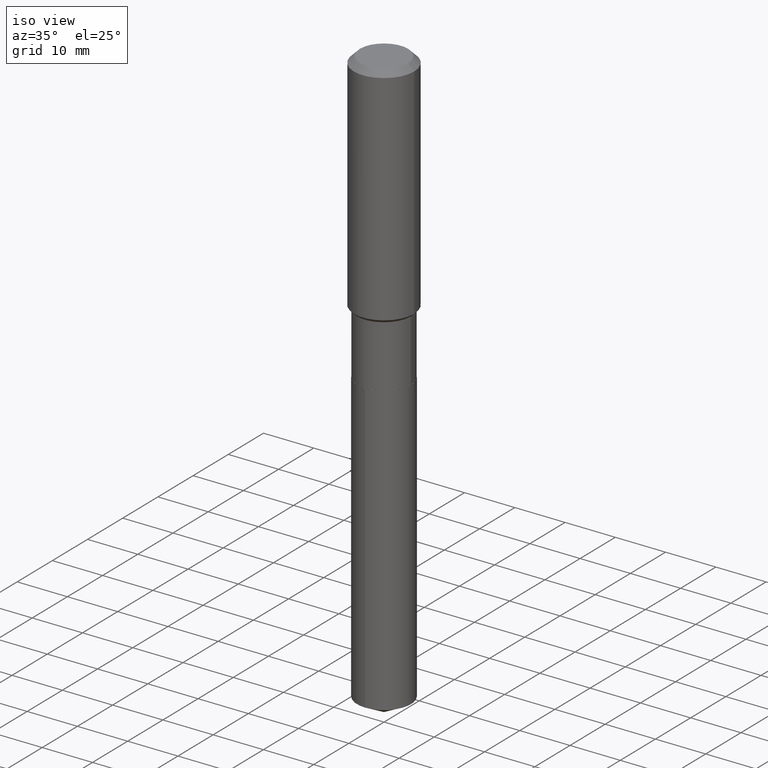
[diagram: clean part render]
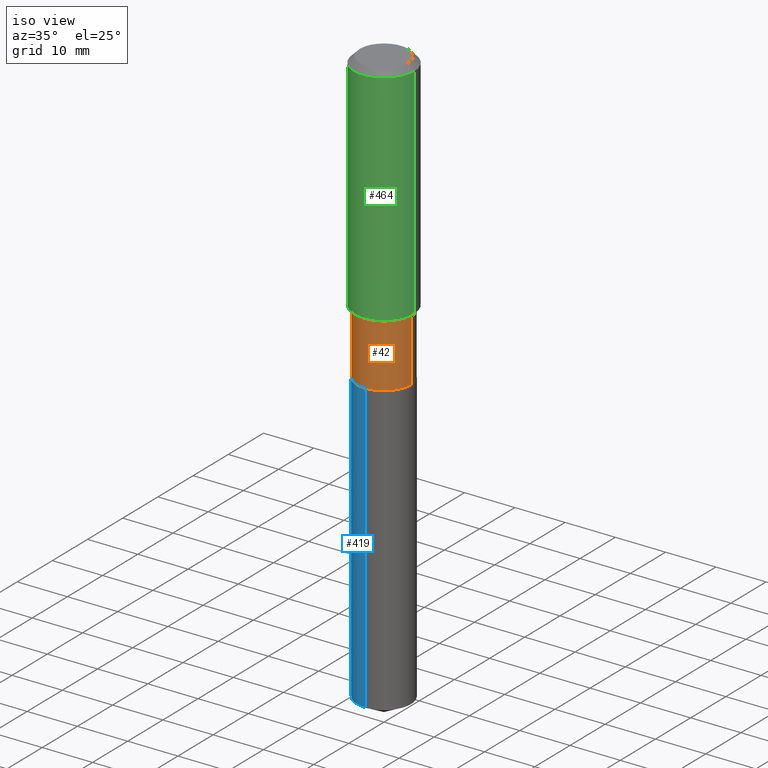
[diagram: same view with three faces highlighted in distinct colors, each labeled with its STEP entity id]
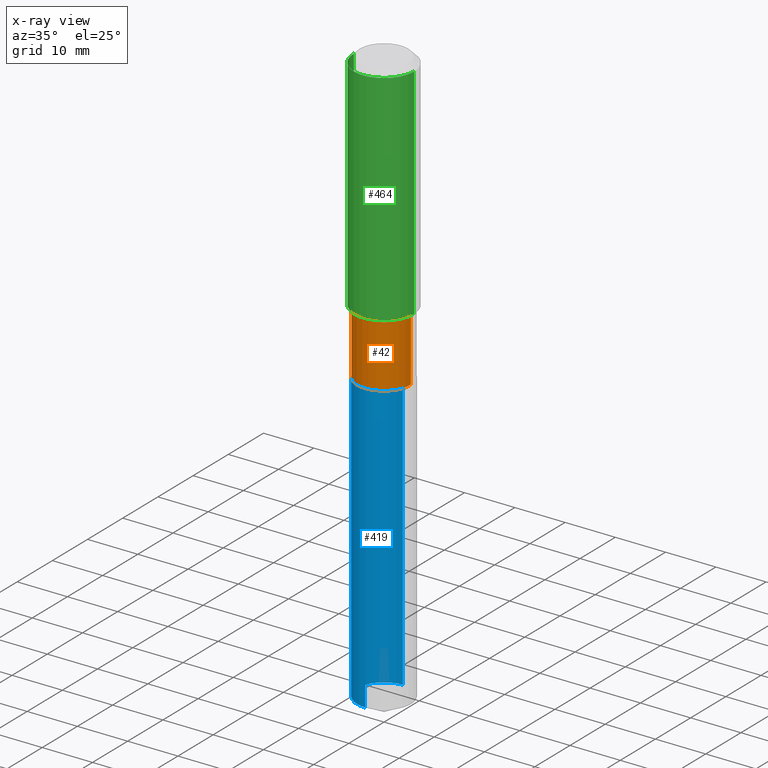
[diagram: x-ray of the same camera — body ghosted, the three highlighted faces saturated]
A machine part, iso view with three faces highlighted in distinct colors.
The next image is the same camera in x-ray (body ghosted, the three faces saturated) — at least one of them is partly hidden behind the body in this view.
Their STEP definitions:

[orange] entity #42 — the highlighted cylindrical surface (edge-blend (fillet) strip) has radius 5.3581 mm, axis along (-0, 0, 1).
#13 = CARTESIAN_POINT ( 'NONE',  ( -0.2109499999999999986, -5.588991790832597522E-15, -2.272400000000000198 ) ) ;
#14 = EDGE_CURVE ( 'NONE', #215, #448, #90, .T. ) ;
#24 = LINE ( 'NONE', #214, #348 ) ;
#31 = ORIENTED_EDGE ( 'NONE', *, *, #430, .T. ) ;
#42 = ADVANCED_FACE ( 'NONE', ( #233 ), #46, .T. ) ;
#46 = CYLINDRICAL_SURFACE ( 'NONE', #93, 0.2109499999999999709 ) ;
#48 = CARTESIAN_POINT ( 'NONE',  ( 0.000000000000000000, 0.000000000000000000, 0.000000000000000000 ) ) ;
#51 = DIRECTION ( 'NONE',  ( 1.000000000000000000, -6.982962677686271444E-15, 0.000000000000000000 ) ) ;
#53 = DIRECTION ( 'NONE',  ( 1.000000000000000000, -6.982962677686268288E-15, 0.000000000000000000 ) ) ;
#59 = AXIS2_PLACEMENT_3D ( 'NONE', #264, #341, #51 ) ;
#90 = LINE ( 'NONE', #98, #147 ) ;
#93 = AXIS2_PLACEMENT_3D ( 'NONE', #48, #384, #446 ) ;
#98 = CARTESIAN_POINT ( 'NONE',  ( -0.2109499999999999709, 1.498889901085931135E-15, -1.037649357289272242E-29 ) ) ;
#113 = CARTESIAN_POINT ( 'NONE',  ( -0.2109499999999999431, -5.588991790832597522E-15, -1.787700000000000067 ) ) ;
#127 = CIRCLE ( 'NONE', #59, 0.2109499999999999986 ) ;
#140 = DIRECTION ( 'NONE',  ( -2.445468806185136877E-29, 3.491481338843145188E-15, 1.000000000000000000 ) ) ;
#147 = VECTOR ( 'NONE', #246, 39.37007874015748143 ) ;
#159 = EDGE_CURVE ( 'NONE', #215, #406, #127, .T. ) ;
#176 = CARTESIAN_POINT ( 'NONE',  ( 0.2109499999999999431, -7.714777166307809916E-15, -1.787700000000000067 ) ) ;
#183 = EDGE_LOOP ( 'NONE', ( #206, #369, #31, #482 ) ) ;
#206 = ORIENTED_EDGE ( 'NONE', *, *, #14, .F. ) ;
#214 = CARTESIAN_POINT ( 'NONE',  ( 0.2109499999999999709, -1.473055976857917762E-15, 1.028629490854152488E-29 ) ) ;
#215 = VERTEX_POINT ( 'NONE', #13 ) ;
#233 = FACE_OUTER_BOUND ( 'NONE', #183, .T. ) ;
#246 = DIRECTION ( 'NONE',  ( -2.445468806185136877E-29, 3.491481338843145188E-15, 1.000000000000000000 ) ) ;
#264 = CARTESIAN_POINT ( 'NONE',  ( 5.557083315175104535E-29, -7.934042194387164964E-15, -2.272400000000000198 ) ) ;
#271 = VERTEX_POINT ( 'NONE', #176 ) ;
#341 = DIRECTION ( 'NONE',  ( -2.445468806185136597E-29, 3.491481338843145583E-15, 1.000000000000000000 ) ) ;
#348 = VECTOR ( 'NONE', #140, 39.37007874015748143 ) ;
#365 = DIRECTION ( 'NONE',  ( -2.445468806185136597E-29, 3.491481338843145583E-15, 1.000000000000000000 ) ) ;
#369 = ORIENTED_EDGE ( 'NONE', *, *, #159, .T. ) ;
#370 = EDGE_CURVE ( 'NONE', #448, #271, #418, .T. ) ;
#384 = DIRECTION ( 'NONE',  ( -2.445468806185136597E-29, 3.491481338843145583E-15, 1.000000000000000000 ) ) ;
#401 = CARTESIAN_POINT ( 'NONE',  ( 0.2109499999999999986, -9.407098171245084106E-15, -2.272400000000000198 ) ) ;
#406 = VERTEX_POINT ( 'NONE', #401 ) ;
#418 = CIRCLE ( 'NONE', #459, 0.2109499999999999431 ) ;
#430 = EDGE_CURVE ( 'NONE', #406, #271, #24, .T. ) ;
#432 = CARTESIAN_POINT ( 'NONE',  ( 4.371764584817169348E-29, -6.241721189449891562E-15, -1.787700000000000067 ) ) ;
#446 = DIRECTION ( 'NONE',  ( 1.000000000000000000, -6.982962677686266711E-15, 4.876176775795935793E-29 ) ) ;
#448 = VERTEX_POINT ( 'NONE', #113 ) ;
#459 = AXIS2_PLACEMENT_3D ( 'NONE', #432, #365, #53 ) ;
#482 = ORIENTED_EDGE ( 'NONE', *, *, #370, .F. ) ;

[blue] entity #419 — the highlighted cylindrical surface (edge-blend (fillet) strip) has radius 5.3581 mm, axis along (-0, 0, 1).
#4 = EDGE_LOOP ( 'NONE', ( #407, #480, #155, #389 ) ) ;
#69 = DIRECTION ( 'NONE',  ( -2.445577934825511487E-29, 3.491325060418912334E-15, 1.000000000000000000 ) ) ;
#76 = EDGE_CURVE ( 'NONE', #268, #144, #408, .T. ) ;
#77 = AXIS2_PLACEMENT_3D ( 'NONE', #329, #69, #334 ) ;
#100 = DIRECTION ( 'NONE',  ( -2.445577934825511487E-29, 3.491325060418912334E-15, 1.000000000000000000 ) ) ;
#116 = CARTESIAN_POINT ( 'NONE',  ( 1.498889901085986750E-15, 0.2109499999999920883, -2.272900000000001253 ) ) ;
#128 = AXIS2_PLACEMENT_3D ( 'NONE', #131, #141, #366 ) ;
#131 = CARTESIAN_POINT ( 'NONE',  ( 5.558306049578197337E-29, -7.935787935056587256E-15, -2.272900000000000365 ) ) ;
#141 = DIRECTION ( 'NONE',  ( -2.445577934825511487E-29, 3.491325060418912334E-15, 1.000000000000000000 ) ) ;
#144 = VERTEX_POINT ( 'NONE', #306 ) ;
#155 = ORIENTED_EDGE ( 'NONE', *, *, #312, .T. ) ;
#161 = CIRCLE ( 'NONE', #280, 0.2109499999999999986 ) ;
#164 = DIRECTION ( 'NONE',  ( -2.445577934825511206E-29, 3.491325060418912334E-15, 1.000000000000000000 ) ) ;
#171 = FACE_OUTER_BOUND ( 'NONE', #4, .T. ) ;
#217 = CARTESIAN_POINT ( 'NONE',  ( 1.498889901086042364E-15, 0.2109499999999842335, -4.533835895391012727 ) ) ;
#248 = VECTOR ( 'NONE', #428, 39.37007874015748143 ) ;
#249 = EDGE_CURVE ( 'NONE', #268, #258, #463, .T. ) ;
#258 = VERTEX_POINT ( 'NONE', #353 ) ;
#267 = VERTEX_POINT ( 'NONE', #404 ) ;
#268 = VERTEX_POINT ( 'NONE', #217 ) ;
#280 = AXIS2_PLACEMENT_3D ( 'NONE', #371, #100, #374 ) ;
#283 = LINE ( 'NONE', #357, #313 ) ;
#306 = CARTESIAN_POINT ( 'NONE',  ( -1.473055976857807322E-15, -0.2109500000000158471, -4.533835895391010951 ) ) ;
#312 = EDGE_CURVE ( 'NONE', #144, #267, #283, .T. ) ;
#313 = VECTOR ( 'NONE', #164, 39.37007874015748143 ) ;
#329 = CARTESIAN_POINT ( 'NONE',  ( 1.108760098740141492E-28, -1.582945008663589642E-14, -4.533835895391011839 ) ) ;
#334 = DIRECTION ( 'NONE',  ( -6.982962677686265922E-15, -1.000000000000000000, 2.590043132177542855E-15 ) ) ;
#353 = CARTESIAN_POINT ( 'NONE',  ( 1.498889901086042759E-15, 0.2109499999999921160, -2.272900000000001253 ) ) ;
#357 = CARTESIAN_POINT ( 'NONE',  ( -1.473055976857862148E-15, -0.2109500000000079367, -2.272899999999999476 ) ) ;
#366 = DIRECTION ( 'NONE',  ( -6.982962677686265922E-15, -1.000000000000000000, 3.885064698266314085E-15 ) ) ;
#371 = CARTESIAN_POINT ( 'NONE',  ( 5.558306049578197337E-29, -7.935787935056587256E-15, -2.272900000000000365 ) ) ;
#374 = DIRECTION ( 'NONE',  ( -6.982962677686265922E-15, -1.000000000000000000, 3.885064698266314085E-15 ) ) ;
#389 = ORIENTED_EDGE ( 'NONE', *, *, #413, .F. ) ;
#403 = CYLINDRICAL_SURFACE ( 'NONE', #128, 0.2109499999999999986 ) ;
#404 = CARTESIAN_POINT ( 'NONE',  ( -1.473055976857862148E-15, -0.2109500000000079367, -2.272899999999999476 ) ) ;
#407 = ORIENTED_EDGE ( 'NONE', *, *, #249, .F. ) ;
#408 = CIRCLE ( 'NONE', #77, 0.2109499999999999986 ) ;
#413 = EDGE_CURVE ( 'NONE', #258, #267, #161, .T. ) ;
#419 = ADVANCED_FACE ( 'NONE', ( #171 ), #403, .T. ) ;
#428 = DIRECTION ( 'NONE',  ( -2.445577934825511206E-29, 3.491325060418912334E-15, 1.000000000000000000 ) ) ;
#463 = LINE ( 'NONE', #116, #248 ) ;
#480 = ORIENTED_EDGE ( 'NONE', *, *, #76, .T. ) ;

[green] entity #464 — the highlighted cylindrical surface (partial cylindrical patch) has radius 5.9995 mm, axis along (-0, 0, 1).
#19 = CARTESIAN_POINT ( 'NONE',  ( -0.2362000000000001043, 1.678301941865357380E-15, -1.161852468318209317E-29 ) ) ;
#26 = VERTEX_POINT ( 'NONE', #415 ) ;
#30 = CARTESIAN_POINT ( 'NONE',  ( 4.310016497460993523E-29, -6.153561285644102082E-15, -1.762449999999999850 ) ) ;
#47 = ORIENTED_EDGE ( 'NONE', *, *, #355, .F. ) ;
#57 = DIRECTION ( 'NONE',  ( -2.445468806185136877E-29, 3.491481338843145188E-15, 1.000000000000000000 ) ) ;
#84 = ORIENTED_EDGE ( 'NONE', *, *, #440, .T. ) ;
#91 = LINE ( 'NONE', #19, #121 ) ;
#118 = EDGE_LOOP ( 'NONE', ( #47, #261, #84, #302 ) ) ;
#121 = VECTOR ( 'NONE', #57, 39.37007874015748143 ) ;
#136 = VERTEX_POINT ( 'NONE', #151 ) ;
#137 = AXIS2_PLACEMENT_3D ( 'NONE', #239, #394, #310 ) ;
#142 = VERTEX_POINT ( 'NONE', #154 ) ;
#146 = CYLINDRICAL_SURFACE ( 'NONE', #232, 0.2362000000000001043 ) ;
#151 = CARTESIAN_POINT ( 'NONE',  ( -0.2361999999999999933, -1.480947490180168921E-15, -0.04724000000000027483 ) ) ;
#154 = CARTESIAN_POINT ( 'NONE',  ( 0.2361999999999999933, -1.814313362916447440E-15, -0.04724000000000027483 ) ) ;
#180 = CIRCLE ( 'NONE', #137, 0.2361999999999999933 ) ;
#196 = AXIS2_PLACEMENT_3D ( 'NONE', #30, #224, #256 ) ;
#221 = DIRECTION ( 'NONE',  ( -2.445468806185136597E-29, 3.491481338843145583E-15, 1.000000000000000000 ) ) ;
#223 = VERTEX_POINT ( 'NONE', #277 ) ;
#224 = DIRECTION ( 'NONE',  ( -2.445468806185136597E-29, 3.491481338843145583E-15, 1.000000000000000000 ) ) ;
#232 = AXIS2_PLACEMENT_3D ( 'NONE', #296, #221, #263 ) ;
#239 = CARTESIAN_POINT ( 'NONE',  ( 1.155239464041865331E-30, -1.649375784469511612E-16, -0.04724000000000027483 ) ) ;
#256 = DIRECTION ( 'NONE',  ( 1.000000000000000000, -6.982962677686266711E-15, 0.000000000000000000 ) ) ;
#261 = ORIENTED_EDGE ( 'NONE', *, *, #442, .T. ) ;
#263 = DIRECTION ( 'NONE',  ( 1.000000000000000000, -6.982962677686266711E-15, 4.876176775795935793E-29 ) ) ;
#277 = CARTESIAN_POINT ( 'NONE',  ( -0.2362000000000002153, -4.475259343778742532E-15, -1.762449999999999850 ) ) ;
#296 = CARTESIAN_POINT ( 'NONE',  ( 0.000000000000000000, 0.000000000000000000, 0.000000000000000000 ) ) ;
#297 = FACE_OUTER_BOUND ( 'NONE', #118, .T. ) ;
#302 = ORIENTED_EDGE ( 'NONE', *, *, #347, .F. ) ;
#310 = DIRECTION ( 'NONE',  ( 1.000000000000000000, -6.982962677686266711E-15, 0.000000000000000000 ) ) ;
#347 = EDGE_CURVE ( 'NONE', #136, #142, #180, .T. ) ;
#355 = EDGE_CURVE ( 'NONE', #223, #136, #91, .T. ) ;
#381 = LINE ( 'NONE', #385, #410 ) ;
#385 = CARTESIAN_POINT ( 'NONE',  ( 0.2362000000000001043, -1.649375784469496920E-15, 1.151752954443000508E-29 ) ) ;
#394 = DIRECTION ( 'NONE',  ( -2.445468806185136597E-29, 3.491481338843145583E-15, 1.000000000000000000 ) ) ;
#409 = CIRCLE ( 'NONE', #196, 0.2362000000000002153 ) ;
#410 = VECTOR ( 'NONE', #488, 39.37007874015748143 ) ;
#415 = CARTESIAN_POINT ( 'NONE',  ( 0.2362000000000002153, -7.802937070113599396E-15, -1.762449999999999850 ) ) ;
#440 = EDGE_CURVE ( 'NONE', #26, #142, #381, .T. ) ;
#442 = EDGE_CURVE ( 'NONE', #223, #26, #409, .T. ) ;
#464 = ADVANCED_FACE ( 'NONE', ( #297 ), #146, .T. ) ;
#488 = DIRECTION ( 'NONE',  ( -2.445468806185136877E-29, 3.491481338843145188E-15, 1.000000000000000000 ) ) ;